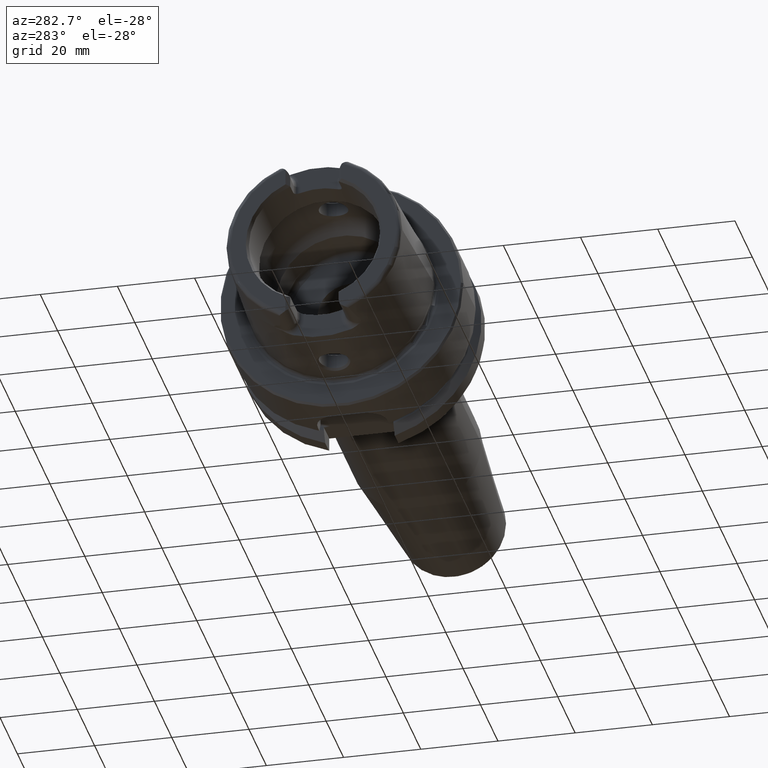
[diagram: clean part render]
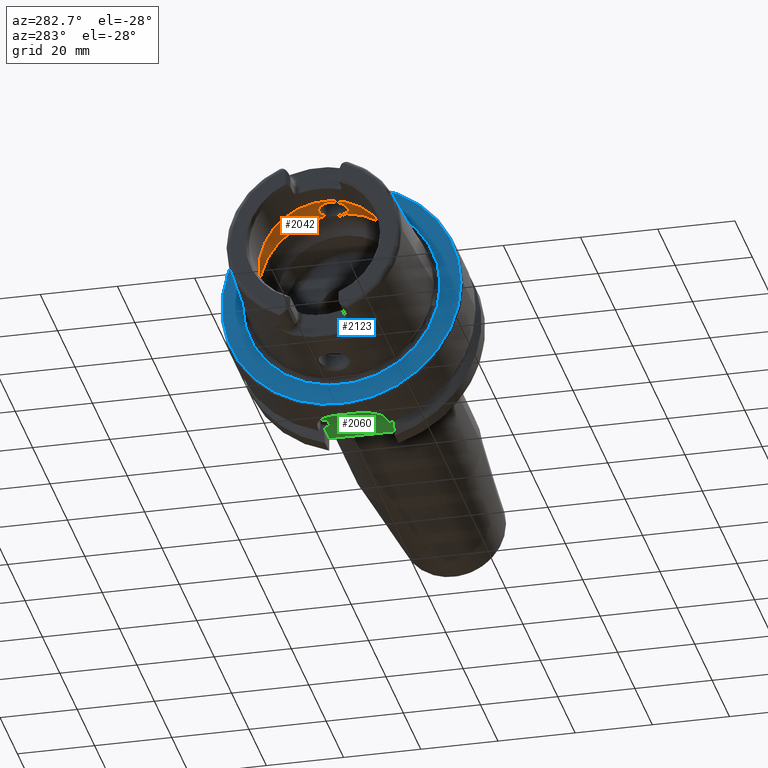
[diagram: same view with three faces highlighted in distinct colors, each labeled with its STEP entity id]
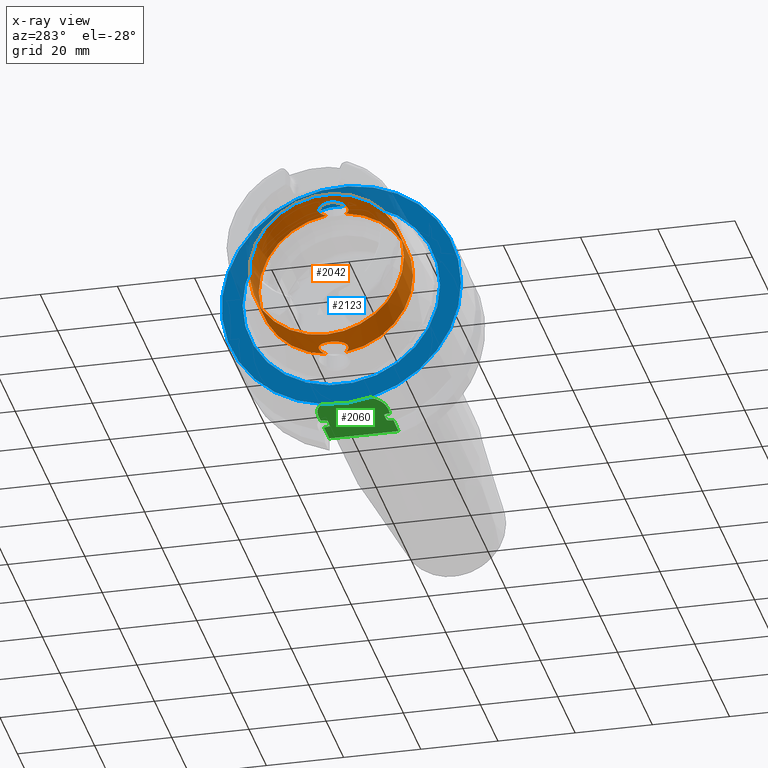
[diagram: x-ray of the same camera — body ghosted, the three highlighted faces saturated]
A machine part, auxiliary view with three faces highlighted in distinct colors.
The next image is the same camera in x-ray (body ghosted, the three faces saturated) — at least one of them is partly hidden behind the body in this view.
Their STEP definitions:

[orange] entity #2042 — the highlighted cylindrical surface (bore or boss wall) has radius 20 mm, axis along (-1, 0, 0).
#50=B_SPLINE_CURVE_WITH_KNOTS('',3,(#3613,#3614,#3615,#3616,#3617,#3618,
#3619,#3620,#3621,#3622,#3623,#3624,#3625,#3626,#3627,#3628,#3629,#3630,
#3631,#3632,#3633,#3634,#3635,#3636,#3637,#3638,#3639,#3640,#3641,#3642,
#3643),.UNSPECIFIED.,.F.,.F.,(4,2,2,2,2,2,2,2,2,2,2,3,2,2,4),(-1.43107314142755,
-1.4161913421645,-1.27456976724955,-1.1329481923346,-0.991326617419658,
-0.849705042504712,-0.708089569336007,-0.566474096167302,-0.424858622998598,
-0.283243149829893,-0.141621574914946,0.,0.141621574914946,0.283243149829893,
0.298124949100151),.UNSPECIFIED.);
#55=B_SPLINE_CURVE_WITH_KNOTS('',3,(#3782,#3783,#3784,#3785,#3786,#3787,
#3788,#3789,#3790,#3791,#3792,#3793,#3794,#3795,#3796,#3797,#3798,#3799,
#3800,#3801,#3802,#3803,#3804,#3805,#3806,#3807,#3808,#3809,#3810,#3811,
#3812),.UNSPECIFIED.,.F.,.F.,(4,2,2,3,2,2,2,2,2,2,2,2,2,2,4),(-0.298124949092949,
-0.283243149829893,-0.141621574914946,0.,0.141621574914946,0.283243149829893,
0.424858622998598,0.566474096167302,0.708089569336007,0.849705042504712,
0.991326617419658,1.1329481923346,1.27456976724955,1.4161913421645,1.43107314143475),
 .UNSPECIFIED.);
#191=CYLINDRICAL_SURFACE('',#2236,20.);
#249=FACE_OUTER_BOUND('',#378,.T.);
#378=EDGE_LOOP('',(#1536,#1537,#1538,#1539,#1540,#1541,#1542,#1543,#1544));
#515=LINE('',#3828,#625);
#625=VECTOR('',#2631,20.);
#731=CIRCLE('',#2237,20.);
#732=CIRCLE('',#2238,20.);
#733=CIRCLE('',#2239,20.);
#734=CIRCLE('',#2240,20.);
#735=CIRCLE('',#2241,20.);
#908=VERTEX_POINT('',#3599);
#909=VERTEX_POINT('',#3612);
#912=VERTEX_POINT('',#3767);
#914=VERTEX_POINT('',#3781);
#915=VERTEX_POINT('',#3825);
#916=VERTEX_POINT('',#3827);
#917=VERTEX_POINT('',#3829);
#1144=EDGE_CURVE('',#909,#908,#50,.T.);
#1150=EDGE_CURVE('',#914,#912,#55,.T.);
#1153=EDGE_CURVE('',#915,#912,#731,.T.);
#1154=EDGE_CURVE('',#915,#916,#515,.T.);
#1155=EDGE_CURVE('',#916,#917,#732,.T.);
#1156=EDGE_CURVE('',#917,#916,#733,.T.);
#1157=EDGE_CURVE('',#909,#915,#734,.T.);
#1158=EDGE_CURVE('',#914,#908,#735,.T.);
#1536=ORIENTED_EDGE('',*,*,#1150,.T.);
#1537=ORIENTED_EDGE('',*,*,#1153,.F.);
#1538=ORIENTED_EDGE('',*,*,#1154,.T.);
#1539=ORIENTED_EDGE('',*,*,#1155,.T.);
#1540=ORIENTED_EDGE('',*,*,#1156,.T.);
#1541=ORIENTED_EDGE('',*,*,#1154,.F.);
#1542=ORIENTED_EDGE('',*,*,#1157,.F.);
#1543=ORIENTED_EDGE('',*,*,#1144,.T.);
#1544=ORIENTED_EDGE('',*,*,#1158,.F.);
#2042=ADVANCED_FACE('',(#249),#191,.F.);
#2236=AXIS2_PLACEMENT_3D('',#3824,#2627,#2628);
#2237=AXIS2_PLACEMENT_3D('',#3826,#2629,#2630);
#2238=AXIS2_PLACEMENT_3D('',#3830,#2632,#2633);
#2239=AXIS2_PLACEMENT_3D('',#3831,#2634,#2635);
#2240=AXIS2_PLACEMENT_3D('',#3832,#2636,#2637);
#2241=AXIS2_PLACEMENT_3D('',#3833,#2638,#2639);
#2627=DIRECTION('center_axis',(-1.,0.,0.));
#2628=DIRECTION('ref_axis',(0.,1.,0.));
#2629=DIRECTION('center_axis',(-1.,0.,0.));
#2630=DIRECTION('ref_axis',(0.,0.,1.));
#2631=DIRECTION('',(-1.,0.,0.));
#2632=DIRECTION('center_axis',(-1.,0.,0.));
#2633=DIRECTION('ref_axis',(0.,0.,1.));
#2634=DIRECTION('center_axis',(-1.,0.,0.));
#2635=DIRECTION('ref_axis',(0.,0.,1.));
#2636=DIRECTION('center_axis',(-1.,0.,0.));
#2637=DIRECTION('ref_axis',(0.,0.,1.));
#2638=DIRECTION('center_axis',(-1.,0.,0.));
#2639=DIRECTION('ref_axis',(0.,0.,1.));
#3599=CARTESIAN_POINT('',(-6.2449979983984,2.54410376580264,-19.8375284758165));
#3612=CARTESIAN_POINT('',(-6.2449979983984,-2.54410376580264,-19.8375284758165));
#3613=CARTESIAN_POINT('Ctrl Pts',(-6.2449979983984,-2.54410376580264,-19.8375284758165));
#3614=CARTESIAN_POINT('Ctrl Pts',(-6.27894943420456,-2.58086966932454,-19.8328133585216));
#3615=CARTESIAN_POINT('Ctrl Pts',(-6.31342869219743,-2.61672955109653,-19.8281105439642));
#3616=CARTESIAN_POINT('Ctrl Pts',(-6.68067160381732,-2.98397246271642,-19.7789868876592));
#3617=CARTESIAN_POINT('Ctrl Pts',(-7.10159661632629,-3.27238367725626,-19.731429741537));
#3618=CARTESIAN_POINT('Ctrl Pts',(-8.0251754070192,-3.65542701546408,-19.6640704965084));
#3619=CARTESIAN_POINT('Ctrl Pts',(-8.52792808361685,-3.75,-19.6452920568771));
#3620=CARTESIAN_POINT('Ctrl Pts',(-9.47207191638316,-3.75,-19.6452920568771));
#3621=CARTESIAN_POINT('Ctrl Pts',(-9.97482459298081,-3.65542701546408,-19.6640704965084));
#3622=CARTESIAN_POINT('Ctrl Pts',(-10.8984033836737,-3.27238367725626,-19.731429741537));
#3623=CARTESIAN_POINT('Ctrl Pts',(-11.3193283961827,-2.98397246271642,-19.7789868876592));
#3624=CARTESIAN_POINT('Ctrl Pts',(-11.9839581446669,-2.31934271423217,-19.8678900149943));
#3625=CARTESIAN_POINT('Ctrl Pts',(-12.2723805817074,-1.89841159537053,-19.9150796801946));
#3626=CARTESIAN_POINT('Ctrl Pts',(-12.6554320620407,-0.974811677040414,
-19.9815942165963));
#3627=CARTESIAN_POINT('Ctrl Pts',(-12.75,-0.472051577229017,-20.));
#3628=CARTESIAN_POINT('Ctrl Pts',(-12.75,0.472051577229015,-20.));
#3629=CARTESIAN_POINT('Ctrl Pts',(-12.6554320620407,0.974811677040408,-19.9815942165963));
#3630=CARTESIAN_POINT('Ctrl Pts',(-12.2723805817074,1.89841159537052,-19.9150796801946));
#3631=CARTESIAN_POINT('Ctrl Pts',(-11.9839581446669,2.31934271423217,-19.8678900149943));
#3632=CARTESIAN_POINT('Ctrl Pts',(-11.3193283961827,2.98397246271642,-19.7789868876592));
#3633=CARTESIAN_POINT('Ctrl Pts',(-10.8984033836737,3.27238367725626,-19.731429741537));
#3634=CARTESIAN_POINT('Ctrl Pts',(-9.97482459298081,3.65542701546408,-19.6640704965084));
#3635=CARTESIAN_POINT('Ctrl Pts',(-9.47207191638316,3.75,-19.6452920568771));
#3636=CARTESIAN_POINT('Ctrl Pts',(-9.,3.75,-19.6452920568771));
#3637=CARTESIAN_POINT('Ctrl Pts',(-8.52792808361685,3.75,-19.6452920568771));
#3638=CARTESIAN_POINT('Ctrl Pts',(-8.0251754070192,3.65542701546408,-19.6640704965084));
#3639=CARTESIAN_POINT('Ctrl Pts',(-7.10159661632629,3.27238367725626,-19.731429741537));
#3640=CARTESIAN_POINT('Ctrl Pts',(-6.68067160381732,2.98397246271642,-19.7789868876592));
#3641=CARTESIAN_POINT('Ctrl Pts',(-6.31342869218053,2.61672955107963,-19.8281105439665));
#3642=CARTESIAN_POINT('Ctrl Pts',(-6.27894943419011,2.5808696693089,-19.8328133585236));
#3643=CARTESIAN_POINT('Ctrl Pts',(-6.2449979983984,2.54410376580264,-19.8375284758165));
#3767=CARTESIAN_POINT('',(-6.2449979983984,-2.54410376580264,19.8375284758165));
#3781=CARTESIAN_POINT('',(-6.2449979983984,2.54410376580264,19.8375284758165));
#3782=CARTESIAN_POINT('Ctrl Pts',(-6.2449979983984,2.54410376580264,19.8375284758165));
#3783=CARTESIAN_POINT('Ctrl Pts',(-6.27894943420456,2.58086966932454,19.8328133585216));
#3784=CARTESIAN_POINT('Ctrl Pts',(-6.31342869219742,2.61672955109653,19.8281105439642));
#3785=CARTESIAN_POINT('Ctrl Pts',(-6.68067160381731,2.98397246271642,19.7789868876592));
#3786=CARTESIAN_POINT('Ctrl Pts',(-7.10159661632629,3.27238367725626,19.731429741537));
#3787=CARTESIAN_POINT('Ctrl Pts',(-8.02517540701919,3.65542701546408,19.6640704965084));
#3788=CARTESIAN_POINT('Ctrl Pts',(-8.52792808361684,3.75,19.6452920568771));
#3789=CARTESIAN_POINT('Ctrl Pts',(-9.,3.75,19.6452920568771));
#3790=CARTESIAN_POINT('Ctrl Pts',(-9.47207191638315,3.75,19.6452920568771));
#3791=CARTESIAN_POINT('Ctrl Pts',(-9.97482459298081,3.65542701546408,19.6640704965084));
#3792=CARTESIAN_POINT('Ctrl Pts',(-10.8984033836737,3.27238367725626,19.731429741537));
#3793=CARTESIAN_POINT('Ctrl Pts',(-11.3193283961827,2.98397246271642,19.7789868876592));
#3794=CARTESIAN_POINT('Ctrl Pts',(-11.9839581446669,2.31934271423217,19.8678900149943));
#3795=CARTESIAN_POINT('Ctrl Pts',(-12.2723805817074,1.89841159537052,19.9150796801946));
#3796=CARTESIAN_POINT('Ctrl Pts',(-12.6554320620407,0.97481167704041,19.9815942165963));
#3797=CARTESIAN_POINT('Ctrl Pts',(-12.75,0.472051577229015,20.));
#3798=CARTESIAN_POINT('Ctrl Pts',(-12.75,-0.472051577229017,20.));
#3799=CARTESIAN_POINT('Ctrl Pts',(-12.6554320620407,-0.974811677040414,
19.9815942165963));
#3800=CARTESIAN_POINT('Ctrl Pts',(-12.2723805817074,-1.89841159537053,19.9150796801946));
#3801=CARTESIAN_POINT('Ctrl Pts',(-11.9839581446669,-2.31934271423217,19.8678900149943));
#3802=CARTESIAN_POINT('Ctrl Pts',(-11.3193283961827,-2.98397246271642,19.7789868876592));
#3803=CARTESIAN_POINT('Ctrl Pts',(-10.8984033836737,-3.27238367725626,19.731429741537));
#3804=CARTESIAN_POINT('Ctrl Pts',(-9.9748245929808,-3.65542701546408,19.6640704965084));
#3805=CARTESIAN_POINT('Ctrl Pts',(-9.47207191638315,-3.75,19.6452920568771));
#3806=CARTESIAN_POINT('Ctrl Pts',(-8.52792808361684,-3.75,19.6452920568771));
#3807=CARTESIAN_POINT('Ctrl Pts',(-8.02517540701919,-3.65542701546408,19.6640704965084));
#3808=CARTESIAN_POINT('Ctrl Pts',(-7.10159661632629,-3.27238367725626,19.731429741537));
#3809=CARTESIAN_POINT('Ctrl Pts',(-6.68067160381731,-2.98397246271642,19.7789868876592));
#3810=CARTESIAN_POINT('Ctrl Pts',(-6.31342869218052,-2.61672955107963,19.8281105439665));
#3811=CARTESIAN_POINT('Ctrl Pts',(-6.27894943419011,-2.5808696693089,19.8328133585236));
#3812=CARTESIAN_POINT('Ctrl Pts',(-6.2449979983984,-2.54410376580264,19.8375284758165));
#3824=CARTESIAN_POINT('Origin',(-11.5812812165501,0.,0.));
#3825=CARTESIAN_POINT('',(-6.2449979983984,-20.,2.44929359829471E-15));
#3826=CARTESIAN_POINT('Origin',(-6.2449979983984,0.,0.));
#3827=CARTESIAN_POINT('',(-16.9175644347018,-20.,2.44929359829471E-15));
#3828=CARTESIAN_POINT('',(-11.5812812165501,-20.,2.44929359829471E-15));
#3829=CARTESIAN_POINT('',(-16.9175644347018,-2.44929359829471E-15,-20.));
#3830=CARTESIAN_POINT('Origin',(-16.9175644347018,0.,0.));
#3831=CARTESIAN_POINT('Origin',(-16.9175644347018,0.,0.));
#3832=CARTESIAN_POINT('Origin',(-6.2449979983984,0.,0.));
#3833=CARTESIAN_POINT('Origin',(-6.2449979983984,0.,0.));

[blue] entity #2123 — the highlighted planar face has unit normal (-1, 0, 0).
#101=FACE_BOUND('',#464,.T.);
#143=PLANE('',#2399);
#330=FACE_OUTER_BOUND('',#463,.T.);
#463=EDGE_LOOP('',(#1969));
#464=EDGE_LOOP('',(#1970));
#812=CIRCLE('',#2398,25.5879092835167);
#813=CIRCLE('',#2400,31.);
#1022=VERTEX_POINT('',#4495);
#1023=VERTEX_POINT('',#4499);
#1339=EDGE_CURVE('',#1022,#1022,#812,.T.);
#1340=EDGE_CURVE('',#1023,#1023,#813,.T.);
#1969=ORIENTED_EDGE('',*,*,#1340,.F.);
#1970=ORIENTED_EDGE('',*,*,#1339,.T.);
#2123=ADVANCED_FACE('',(#330,#101),#143,.T.);
#2398=AXIS2_PLACEMENT_3D('',#4497,#3012,#3013);
#2399=AXIS2_PLACEMENT_3D('',#4498,#3014,#3015);
#2400=AXIS2_PLACEMENT_3D('',#4500,#3016,#3017);
#3012=DIRECTION('center_axis',(1.,0.,0.));
#3013=DIRECTION('ref_axis',(0.,0.,-1.));
#3014=DIRECTION('center_axis',(-1.,0.,0.));
#3015=DIRECTION('ref_axis',(0.,0.,1.));
#3016=DIRECTION('center_axis',(1.,0.,0.));
#3017=DIRECTION('ref_axis',(0.,0.,-1.));
#4495=CARTESIAN_POINT('',(-3.55618312575245E-16,-25.5879092835167,-3.13361512009315E-15));
#4497=CARTESIAN_POINT('Origin',(0.,0.,0.));
#4498=CARTESIAN_POINT('Origin',(0.,31.,0.));
#4499=CARTESIAN_POINT('',(-5.89805981832114E-16,-31.,-3.7964050773568E-15));
#4500=CARTESIAN_POINT('Origin',(0.,0.,0.));

[green] entity #2060 — the highlighted planar face has unit normal (0, 0, 1).
#67=B_SPLINE_CURVE_WITH_KNOTS('',3,(#4066,#4067,#4068,#4069,#4070,#4071,
#4072,#4073,#4074,#4075),.UNSPECIFIED.,.F.,.F.,(4,2,2,2,4),(0.15835931245442,
0.289228035148658,0.316691561230897,0.323545183976989,0.328785692776271),
 .UNSPECIFIED.);
#68=B_SPLINE_CURVE_WITH_KNOTS('',3,(#4087,#4088,#4089,#4090,#4091,#4092,
#4093,#4094,#4095,#4096),.UNSPECIFIED.,.F.,.F.,(4,2,2,2,4),(0.328785692776271,
0.334026201575553,0.340879824321645,0.368343350403884,0.499212073098123),
 .UNSPECIFIED.);
#69=B_SPLINE_CURVE_WITH_KNOTS('',3,(#4099,#4100,#4101,#4102,#4103,#4104,
#4105,#4106,#4107,#4108),.UNSPECIFIED.,.F.,.F.,(4,2,2,2,4),(0.15835931245442,
0.289228035148658,0.316691561230897,0.323545183976988,0.32878569277627),
 .UNSPECIFIED.);
#70=B_SPLINE_CURVE_WITH_KNOTS('',3,(#4110,#4111,#4112,#4113,#4114,#4115,
#4116,#4117,#4118,#4119),.UNSPECIFIED.,.F.,.F.,(4,2,2,2,4),(0.32878569277627,
0.334026201575552,0.340879824321644,0.368343350403882,0.49921207309812),
 .UNSPECIFIED.);
#123=PLANE('',#2277);
#267=FACE_OUTER_BOUND('',#396,.T.);
#396=EDGE_LOOP('',(#1638,#1639,#1640,#1641,#1642,#1643,#1644,#1645,#1646,
#1647,#1648,#1649,#1650,#1651));
#478=LINE('',#3100,#588);
#533=LINE('',#4020,#643);
#535=LINE('',#4050,#645);
#538=LINE('',#4077,#648);
#539=LINE('',#4081,#649);
#540=LINE('',#4085,#650);
#541=LINE('',#4098,#651);
#542=LINE('',#4120,#652);
#588=VECTOR('',#2482,10.);
#643=VECTOR('',#2725,10.);
#645=VECTOR('',#2729,10.);
#648=VECTOR('',#2734,10.);
#649=VECTOR('',#2737,10.);
#650=VECTOR('',#2740,10.);
#651=VECTOR('',#2741,10.);
#652=VECTOR('',#2742,10.);
#754=CIRCLE('',#2278,8.);
#755=CIRCLE('',#2279,8.);
#838=VERTEX_POINT('',#3097);
#839=VERTEX_POINT('',#3099);
#952=VERTEX_POINT('',#4015);
#956=VERTEX_POINT('',#4049);
#960=VERTEX_POINT('',#4064);
#961=VERTEX_POINT('',#4065);
#962=VERTEX_POINT('',#4076);
#963=VERTEX_POINT('',#4078);
#964=VERTEX_POINT('',#4080);
#965=VERTEX_POINT('',#4082);
#966=VERTEX_POINT('',#4084);
#967=VERTEX_POINT('',#4086);
#968=VERTEX_POINT('',#4097);
#969=VERTEX_POINT('',#4109);
#1055=EDGE_CURVE('',#838,#839,#478,.T.);
#1207=EDGE_CURVE('',#952,#838,#533,.T.);
#1212=EDGE_CURVE('',#839,#956,#535,.T.);
#1217=EDGE_CURVE('',#960,#961,#67,.T.);
#1218=EDGE_CURVE('',#962,#960,#538,.T.);
#1219=EDGE_CURVE('',#963,#962,#754,.T.);
#1220=EDGE_CURVE('',#964,#963,#539,.T.);
#1221=EDGE_CURVE('',#965,#964,#755,.T.);
#1222=EDGE_CURVE('',#966,#965,#540,.T.);
#1223=EDGE_CURVE('',#967,#966,#68,.T.);
#1224=EDGE_CURVE('',#968,#967,#541,.T.);
#1225=EDGE_CURVE('',#956,#968,#69,.T.);
#1226=EDGE_CURVE('',#969,#952,#70,.T.);
#1227=EDGE_CURVE('',#961,#969,#542,.T.);
#1638=ORIENTED_EDGE('',*,*,#1217,.F.);
#1639=ORIENTED_EDGE('',*,*,#1218,.F.);
#1640=ORIENTED_EDGE('',*,*,#1219,.F.);
#1641=ORIENTED_EDGE('',*,*,#1220,.F.);
#1642=ORIENTED_EDGE('',*,*,#1221,.F.);
#1643=ORIENTED_EDGE('',*,*,#1222,.F.);
#1644=ORIENTED_EDGE('',*,*,#1223,.F.);
#1645=ORIENTED_EDGE('',*,*,#1224,.F.);
#1646=ORIENTED_EDGE('',*,*,#1225,.F.);
#1647=ORIENTED_EDGE('',*,*,#1212,.F.);
#1648=ORIENTED_EDGE('',*,*,#1055,.F.);
#1649=ORIENTED_EDGE('',*,*,#1207,.F.);
#1650=ORIENTED_EDGE('',*,*,#1226,.F.);
#1651=ORIENTED_EDGE('',*,*,#1227,.F.);
#2060=ADVANCED_FACE('',(#267),#123,.F.);
#2277=AXIS2_PLACEMENT_3D('',#4063,#2732,#2733);
#2278=AXIS2_PLACEMENT_3D('',#4079,#2735,#2736);
#2279=AXIS2_PLACEMENT_3D('',#4083,#2738,#2739);
#2482=DIRECTION('',(0.,1.,0.));
#2725=DIRECTION('',(1.,-2.56205313375036E-16,0.));
#2729=DIRECTION('',(-1.,2.56205313375036E-16,0.));
#2732=DIRECTION('center_axis',(0.,0.,1.));
#2733=DIRECTION('ref_axis',(1.,0.,0.));
#2734=DIRECTION('',(1.,-2.56205313375036E-16,0.));
#2735=DIRECTION('center_axis',(0.,0.,1.));
#2736=DIRECTION('ref_axis',(-1.,-2.42861286636753E-16,0.));
#2737=DIRECTION('',(0.,-1.,0.));
#2738=DIRECTION('center_axis',(0.,0.,1.));
#2739=DIRECTION('ref_axis',(0.,1.,0.));
#2740=DIRECTION('',(-1.,2.56205313375036E-16,0.));
#2741=DIRECTION('',(-1.,0.,0.));
#2742=DIRECTION('',(1.,0.,0.));
#3097=CARTESIAN_POINT('',(26.,-9.,-26.5));
#3099=CARTESIAN_POINT('',(26.,9.,-26.5));
#3100=CARTESIAN_POINT('',(26.,1.94289029309402E-15,-26.5));
#4015=CARTESIAN_POINT('',(19.8748205133158,-9.,-26.5));
#4020=CARTESIAN_POINT('',(13.,-9.,-26.5));
#4049=CARTESIAN_POINT('',(19.8748205133158,9.,-26.5));
#4050=CARTESIAN_POINT('',(26.,9.,-26.5));
#4063=CARTESIAN_POINT('Origin',(15.5,3.88578058618805E-15,-26.5));
#4064=CARTESIAN_POINT('',(16.1251794866842,-9.,-26.5));
#4065=CARTESIAN_POINT('',(16.625,-7.34846922834952,-26.5));
#4066=CARTESIAN_POINT('Ctrl Pts',(16.1251794866842,-9.,-26.5));
#4067=CARTESIAN_POINT('Ctrl Pts',(16.12898241235,-8.55877260788573,-26.5));
#4068=CARTESIAN_POINT('Ctrl Pts',(16.1819334034884,-8.04136347440828,-26.5));
#4069=CARTESIAN_POINT('Ctrl Pts',(16.3906456489289,-7.5566112023157,-26.5));
#4070=CARTESIAN_POINT('Ctrl Pts',(16.4411490019356,-7.4590543697872,-26.5));
#4071=CARTESIAN_POINT('Ctrl Pts',(16.5270295504762,-7.38349170057081,-26.5));
#4072=CARTESIAN_POINT('Ctrl Pts',(16.5496994821687,-7.36807649661538,-26.5));
#4073=CARTESIAN_POINT('Ctrl Pts',(16.587038394856,-7.35287762173868,-26.5));
#4074=CARTESIAN_POINT('Ctrl Pts',(16.6075316373357,-7.34846922834952,-26.5));
#4075=CARTESIAN_POINT('Ctrl Pts',(16.625,-7.34846922834952,-26.5));
#4076=CARTESIAN_POINT('',(13.,-9.,-26.5));
#4077=CARTESIAN_POINT('',(13.,-9.,-26.5));
#4078=CARTESIAN_POINT('',(5.,-0.999999999999999,-26.5));
#4079=CARTESIAN_POINT('Origin',(13.,-0.999999999999997,-26.5));
#4080=CARTESIAN_POINT('',(5.,1.,-26.5));
#4081=CARTESIAN_POINT('',(5.,1.,-26.5));
#4082=CARTESIAN_POINT('',(13.,9.00000000000001,-26.5));
#4083=CARTESIAN_POINT('Origin',(13.,1.,-26.5));
#4084=CARTESIAN_POINT('',(16.1251794866842,9.,-26.5));
#4085=CARTESIAN_POINT('',(26.,9.,-26.5));
#4086=CARTESIAN_POINT('',(16.625,7.34846922834952,-26.5));
#4087=CARTESIAN_POINT('Ctrl Pts',(16.625,7.34846922834952,-26.5));
#4088=CARTESIAN_POINT('Ctrl Pts',(16.6075316373357,7.34846922834952,-26.5));
#4089=CARTESIAN_POINT('Ctrl Pts',(16.587038394856,7.35287762173868,-26.5));
#4090=CARTESIAN_POINT('Ctrl Pts',(16.5496994821687,7.36807649661538,-26.5));
#4091=CARTESIAN_POINT('Ctrl Pts',(16.5270295504762,7.38349170057081,-26.5));
#4092=CARTESIAN_POINT('Ctrl Pts',(16.4411490019356,7.4590543697872,-26.5));
#4093=CARTESIAN_POINT('Ctrl Pts',(16.3906456489289,7.5566112023157,-26.5));
#4094=CARTESIAN_POINT('Ctrl Pts',(16.1819334034884,8.04136347440828,-26.5));
#4095=CARTESIAN_POINT('Ctrl Pts',(16.12898241235,8.55877260788573,-26.5));
#4096=CARTESIAN_POINT('Ctrl Pts',(16.1251794866842,9.,-26.5));
#4097=CARTESIAN_POINT('',(19.375,7.34846922834952,-26.5));
#4098=CARTESIAN_POINT('',(18.,7.34846922834952,-26.5));
#4099=CARTESIAN_POINT('Ctrl Pts',(19.8748205133158,9.,-26.5));
#4100=CARTESIAN_POINT('Ctrl Pts',(19.87101758765,8.55877260788573,-26.5));
#4101=CARTESIAN_POINT('Ctrl Pts',(19.8180665965116,8.04136347440828,-26.5));
#4102=CARTESIAN_POINT('Ctrl Pts',(19.6093543510711,7.5566112023157,-26.5));
#4103=CARTESIAN_POINT('Ctrl Pts',(19.5588509980644,7.45905436978719,-26.5));
#4104=CARTESIAN_POINT('Ctrl Pts',(19.4729704495238,7.38349170057082,-26.5));
#4105=CARTESIAN_POINT('Ctrl Pts',(19.4503005178313,7.3680764966154,-26.5));
#4106=CARTESIAN_POINT('Ctrl Pts',(19.412961605144,7.35287762173869,-26.5));
#4107=CARTESIAN_POINT('Ctrl Pts',(19.3924683626643,7.34846922834952,-26.5));
#4108=CARTESIAN_POINT('Ctrl Pts',(19.375,7.34846922834952,-26.5));
#4109=CARTESIAN_POINT('',(19.375,-7.34846922834952,-26.5));
#4110=CARTESIAN_POINT('Ctrl Pts',(19.375,-7.34846922834952,-26.5));
#4111=CARTESIAN_POINT('Ctrl Pts',(19.3924683626643,-7.34846922834952,-26.5));
#4112=CARTESIAN_POINT('Ctrl Pts',(19.412961605144,-7.35287762173869,-26.5));
#4113=CARTESIAN_POINT('Ctrl Pts',(19.4503005178313,-7.3680764966154,-26.5));
#4114=CARTESIAN_POINT('Ctrl Pts',(19.4729704495238,-7.38349170057082,-26.5));
#4115=CARTESIAN_POINT('Ctrl Pts',(19.5588509980644,-7.45905436978719,-26.5));
#4116=CARTESIAN_POINT('Ctrl Pts',(19.6093543510711,-7.5566112023157,-26.5));
#4117=CARTESIAN_POINT('Ctrl Pts',(19.8180665965116,-8.04136347440828,-26.5));
#4118=CARTESIAN_POINT('Ctrl Pts',(19.87101758765,-8.55877260788573,-26.5));
#4119=CARTESIAN_POINT('Ctrl Pts',(19.8748205133158,-9.,-26.5));
#4120=CARTESIAN_POINT('',(18.,-7.34846922834952,-26.5));